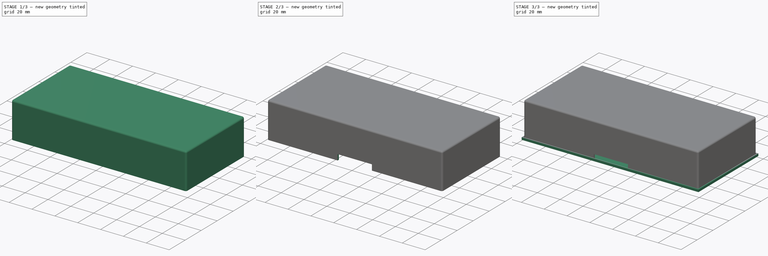
[diagram: build sequence overview — one tinted view per stage of 3, left to right]
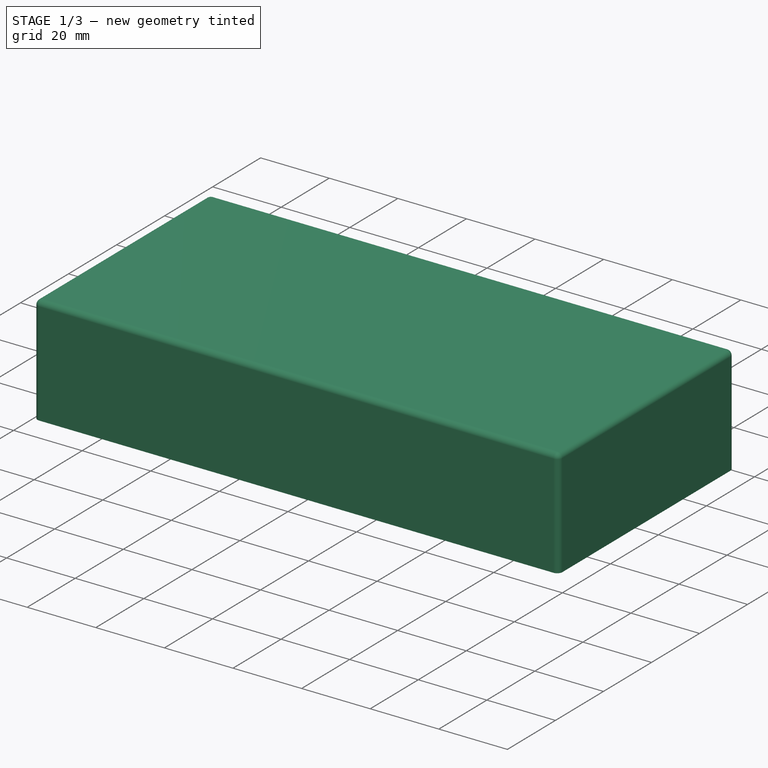
[diagram: stage 1 of 3 — iso view after this stage's code; geometry added in this stage tinted green]
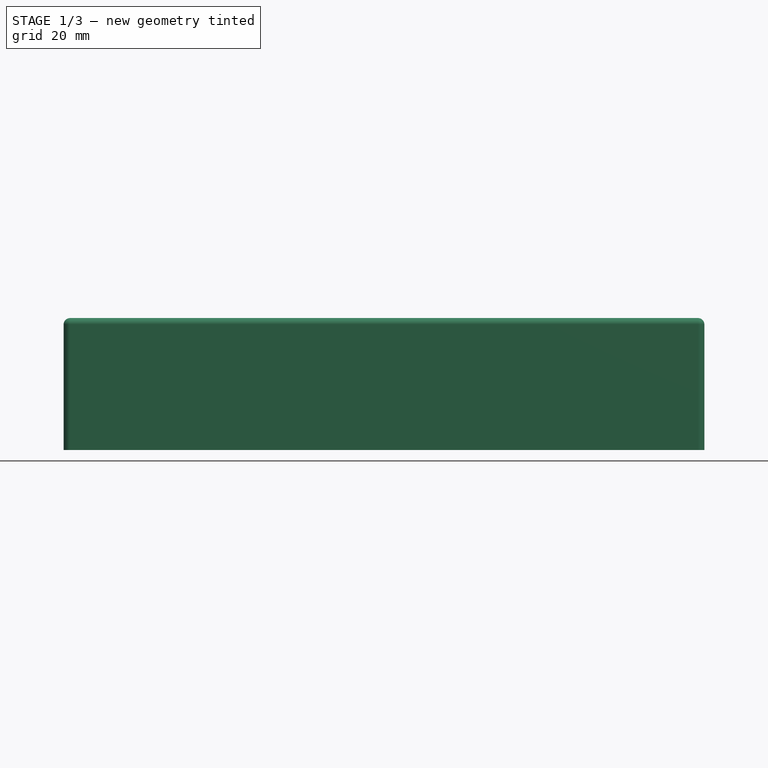
[diagram: stage 1 of 3 — front view after this stage's code; geometry added in this stage tinted green]
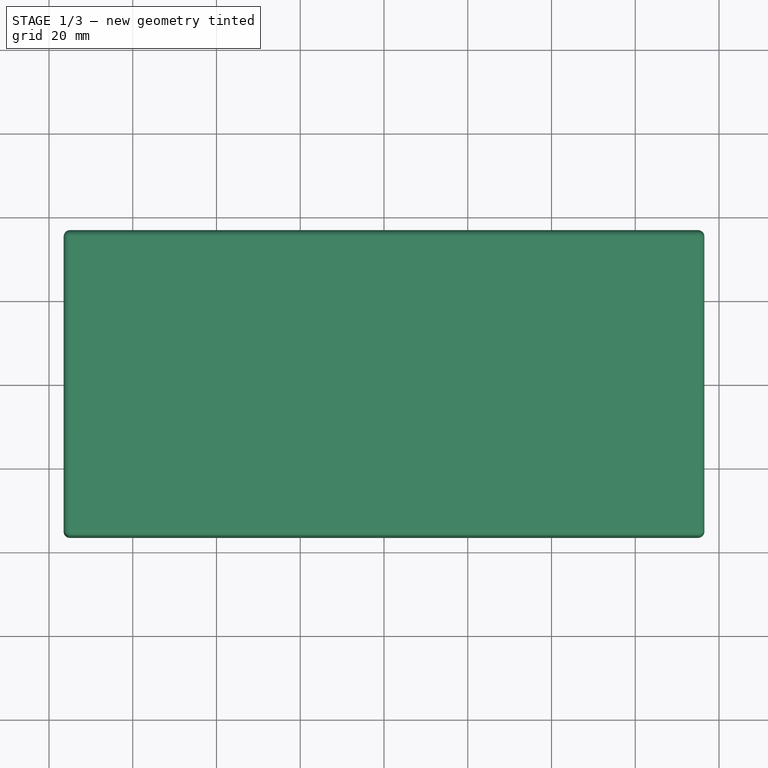
[diagram: stage 1 of 3 — top view after this stage's code; geometry added in this stage tinted green]
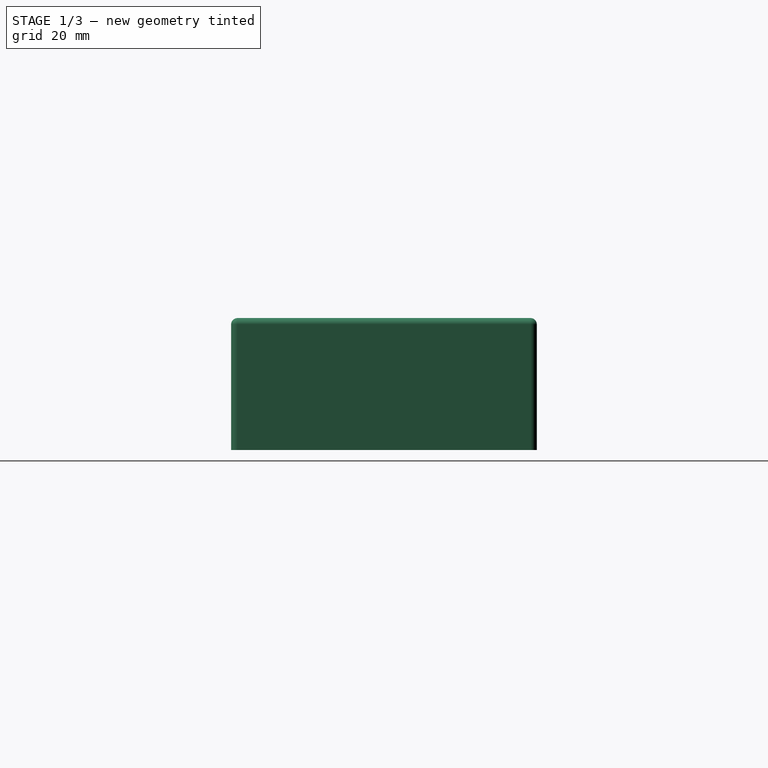
[diagram: stage 1 of 3 — right view after this stage's code; geometry added in this stage tinted green]
FCSTD DOCUMENT  (FreeCAD 0.14R3702 (Git))
Label: case_large
License: All rights reserved
LicenseURL: http://en.wikipedia.org/wiki/All_rights_reserved
objects: Sketcher::SketchObject×4, PartDesign::Pad×2, PartDesign::Pocket×2, Part::Thickness×1
note: 13 computed .brp shape members not serialized (recipe doc carries the construction recipe); baked Part::Feature solids carry a one-line shape summary decoded from their .brp

FEATURE [Sketcher::SketchObject] Sketch  label="cover"
  sketch-geometry (4):
    g0: LineSegment StartX=-75 StartY=35 StartZ=0 EndX=75 EndY=35 EndZ=0
    g1: LineSegment StartX=75 StartY=35 StartZ=0 EndX=75 EndY=-35 EndZ=0
    g2: LineSegment StartX=75 StartY=-35 StartZ=0 EndX=-75 EndY=-35 EndZ=0
    g3: LineSegment StartX=-75 StartY=-35 StartZ=0 EndX=-75 EndY=35 EndZ=0
  constraints (12):
    c: Coincident(g0,g1)
    c: Coincident(g1,g2)
    c: Coincident(g2,g3)
    c: Coincident(g3,g0)
    c: Horizontal(g0)
    c: Horizontal(g2)
    c: Vertical(g1)
    c: Vertical(g3)
    c: Symmetric(g0,g0,g-2)
    c: Symmetric(g0,g2,g-1)
    c: Distance(g3) = 70
    c: Distance(g0) = 150
FEATURE [PartDesign::Pad] Pad  label="fill_cover"
  Length = 30
  Length2 = 100
  Sketch = -> Sketch
  Type = 0
FEATURE [Part::Thickness] Thickness  label="thinkness_cover"
  Faces = -> Pad [Face5]
  Intersection = false
  Join = 0
  Mode = 0
  SelfIntersection = false
  Value = 1.5
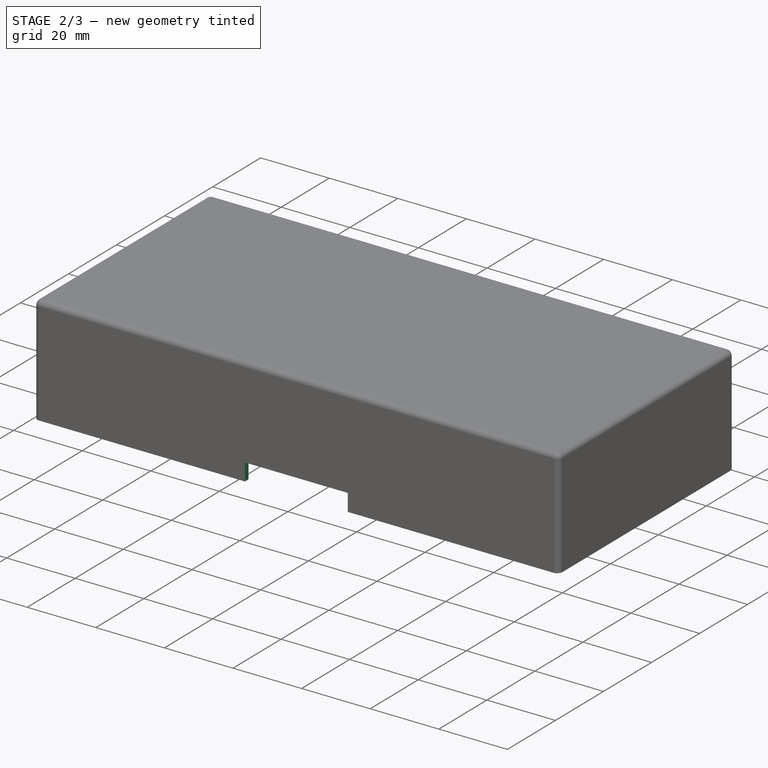
[diagram: stage 2 of 3 — iso view after this stage's code; geometry added in this stage tinted green]
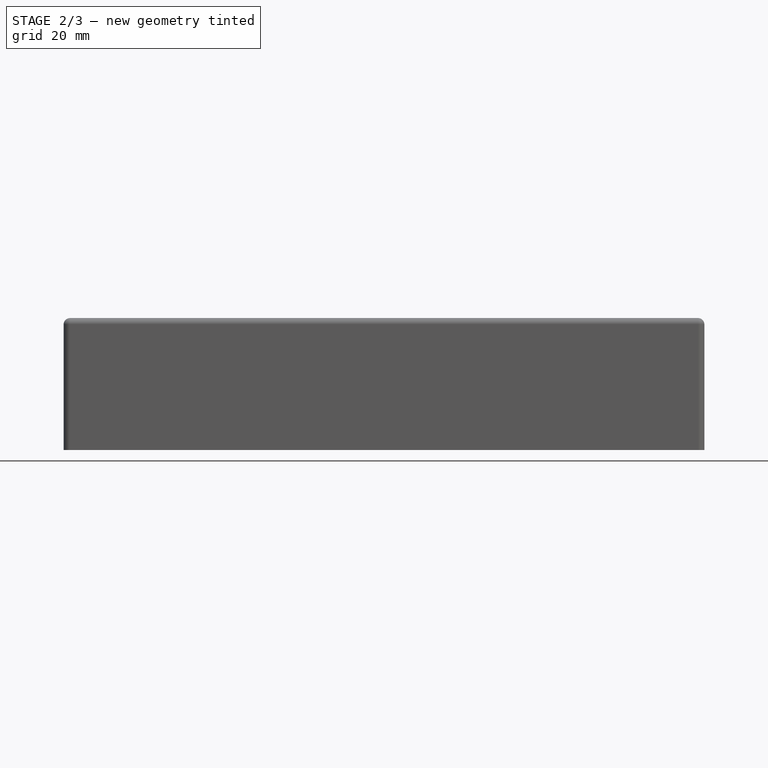
[diagram: stage 2 of 3 — front view after this stage's code; geometry added in this stage tinted green]
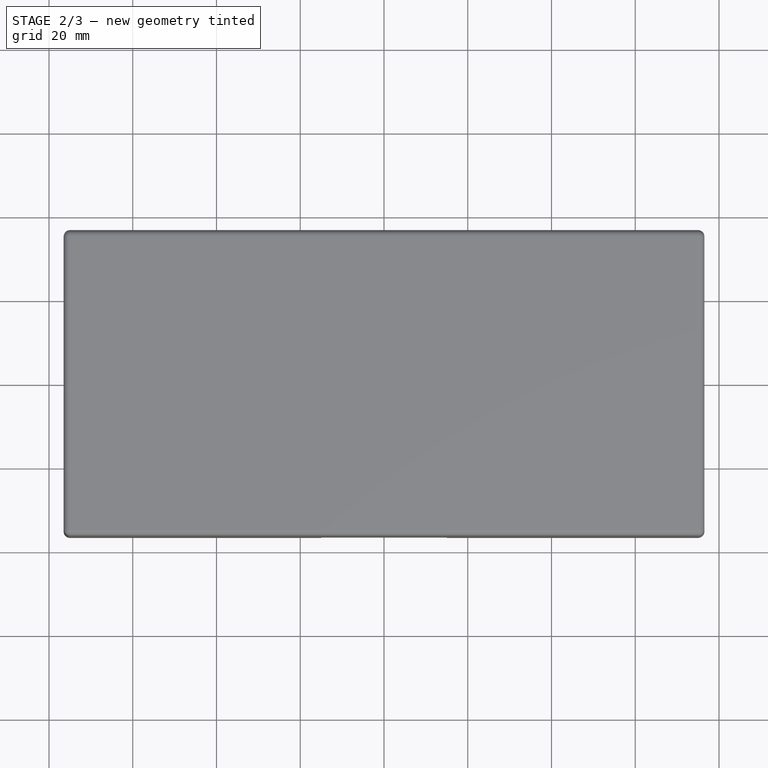
[diagram: stage 2 of 3 — top view after this stage's code; geometry added in this stage tinted green]
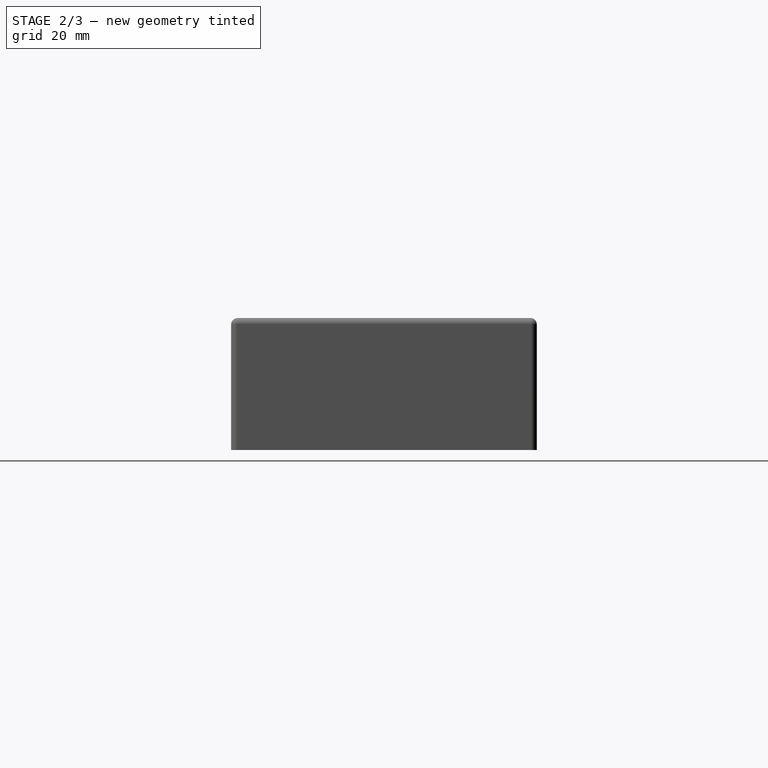
[diagram: stage 2 of 3 — right view after this stage's code; geometry added in this stage tinted green]
FEATURE [Sketcher::SketchObject] Sketch003  label="hole"
  Placement = pos=(0,-36.5,0) rot=(1,0,0;1.5708rad)
  Support = -> Thickness [Face12]
  sketch-geometry (4):
    g0: LineSegment StartX=-15 StartY=5 StartZ=0 EndX=15 EndY=5 EndZ=0
    g1: LineSegment StartX=15 StartY=5 StartZ=0 EndX=15 EndY=0 EndZ=0
    g2: LineSegment StartX=15 StartY=0 StartZ=0 EndX=-15 EndY=0 EndZ=0
    g3: LineSegment StartX=-15 StartY=0 StartZ=0 EndX=-15 EndY=5 EndZ=0
  constraints (12):
    c: Coincident(g0,g1)
    c: Coincident(g1,g2)
    c: Coincident(g2,g3)
    c: Coincident(g3,g0)
    c: Horizontal(g0)
    c: Horizontal(g2)
    c: Vertical(g1)
    c: Vertical(g3)
    c: Symmetric(g0,g0,g-2)
    c: Distance(g3) = 5
    c: Distance(g0) = 30
    c: DistanceY(g-1,g1) = 0
FEATURE [PartDesign::Pocket] Pocket001  label="cover_hole"
  Length = 0
  Sketch = -> Sketch003
  Type = 2
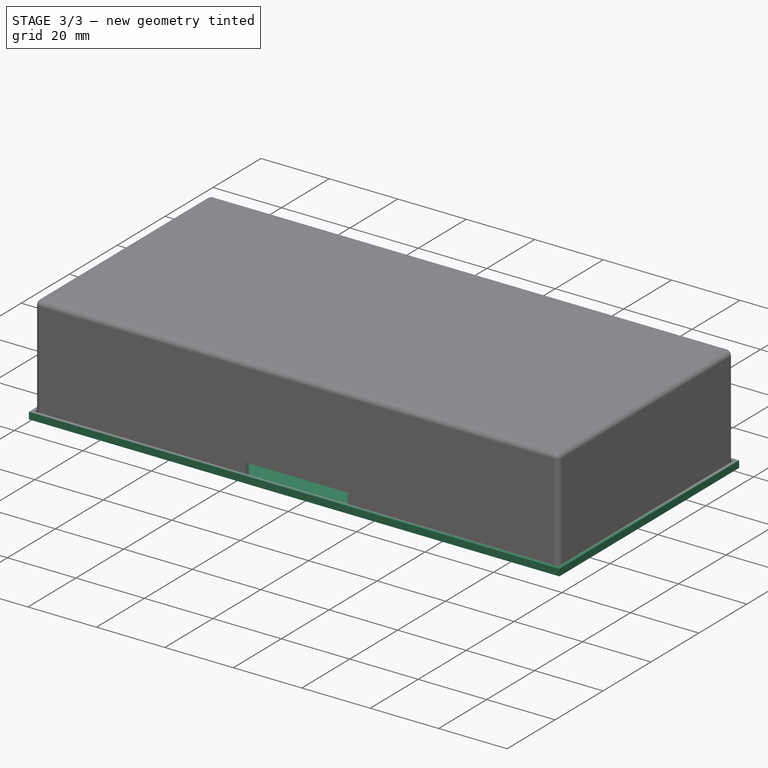
[diagram: stage 3 of 3 — iso view after this stage's code; geometry added in this stage tinted green]
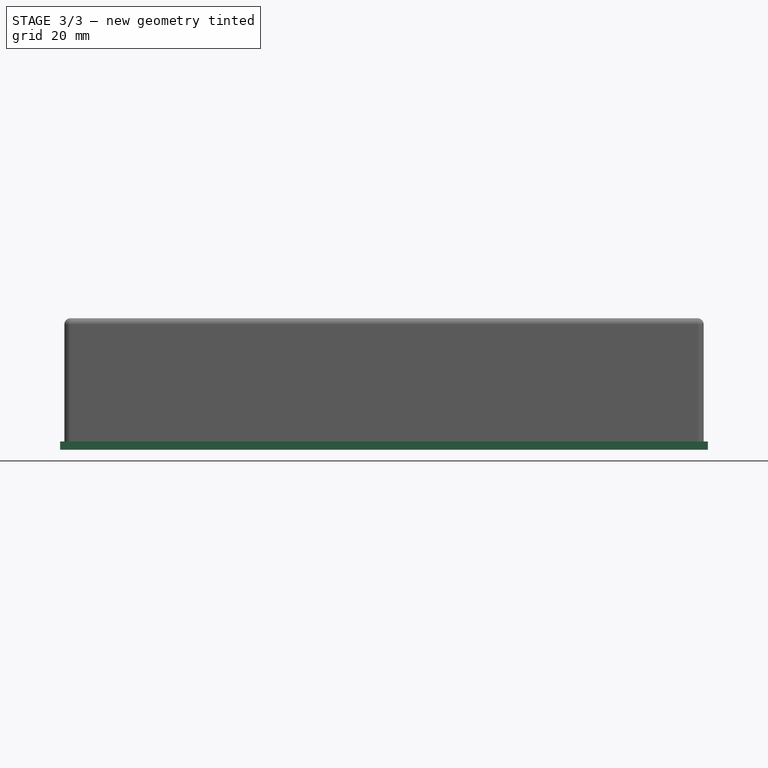
[diagram: stage 3 of 3 — front view after this stage's code; geometry added in this stage tinted green]
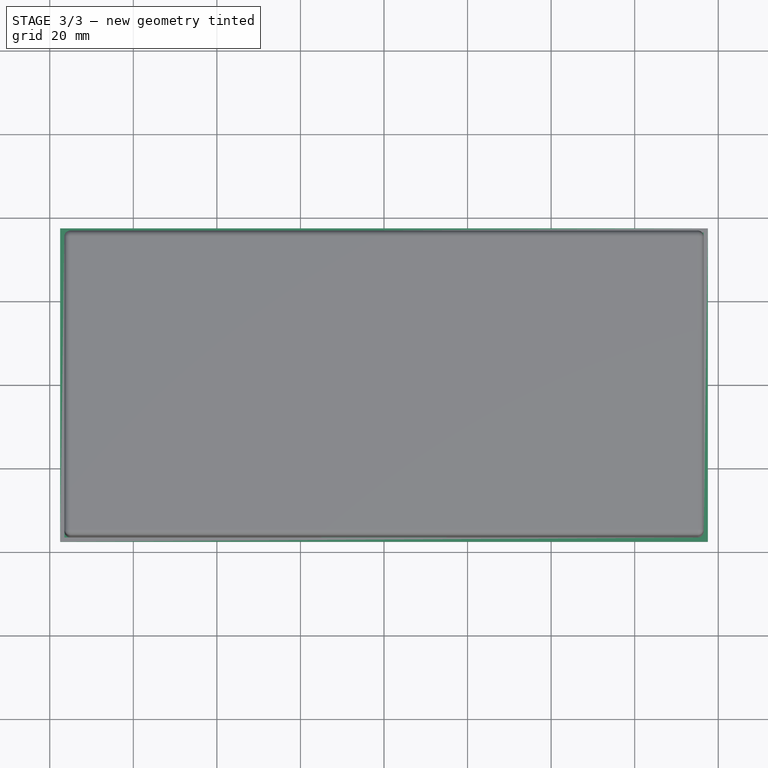
[diagram: stage 3 of 3 — top view after this stage's code; geometry added in this stage tinted green]
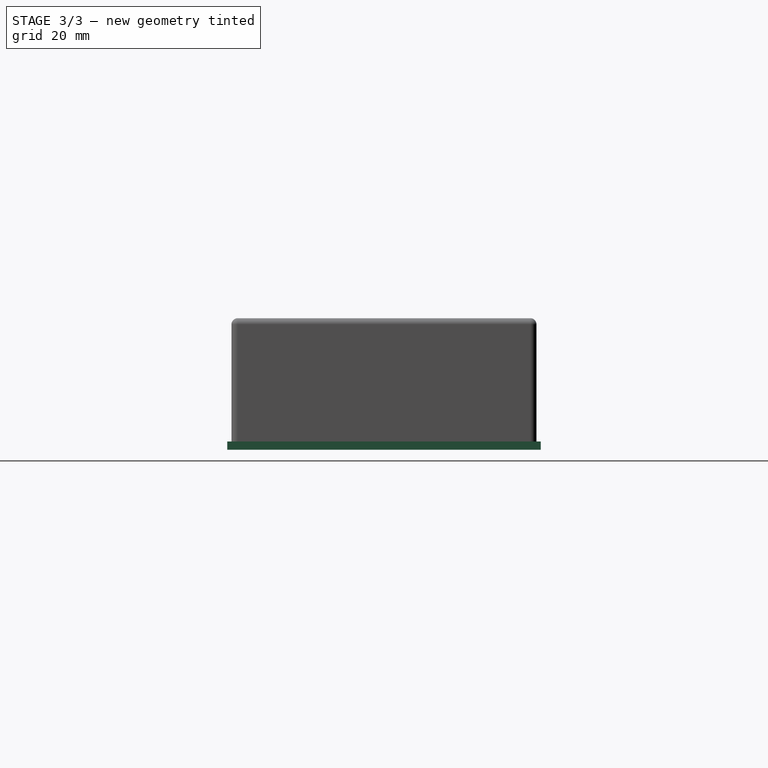
[diagram: stage 3 of 3 — right view after this stage's code; geometry added in this stage tinted green]
FEATURE [Sketcher::SketchObject] Sketch001  label="socle"
  sketch-geometry (4):
    g0: LineSegment StartX=-77.5 StartY=37.5 StartZ=0 EndX=77.5 EndY=37.5 EndZ=0
    g1: LineSegment StartX=77.5 StartY=37.5 StartZ=0 EndX=77.5 EndY=-37.5 EndZ=0
    g2: LineSegment StartX=77.5 StartY=-37.5 StartZ=0 EndX=-77.5 EndY=-37.5 EndZ=0
    g3: LineSegment StartX=-77.5 StartY=-37.5 StartZ=0 EndX=-77.5 EndY=37.5 EndZ=0
  constraints (12):
    c: Coincident(g0,g1)
    c: Coincident(g1,g2)
    c: Coincident(g2,g3)
    c: Coincident(g3,g0)
    c: Horizontal(g0)
    c: Horizontal(g2)
    c: Vertical(g1)
    c: Vertical(g3)
    c: Symmetric(g0,g0,g-2)
    c: Symmetric(g0,g2,g-1)
    c: Distance(g3) = 75
    c: Distance(g0) = 155
FEATURE [PartDesign::Pad] Pad001  label="fill_socle"
  Length = 2
  Length2 = 100
  Sketch = -> Sketch001
  Type = 0
FEATURE [Sketcher::SketchObject] Sketch002  label="pocket"
  Placement = pos=(0,0,2) rot=(0,0,1;0rad)
  Support = -> Pad001 [Face6]
  sketch-geometry (4):
    g0: LineSegment StartX=-76.5 StartY=36.5 StartZ=0 EndX=76.5 EndY=36.5 EndZ=0
    g1: LineSegment StartX=76.5 StartY=36.5 StartZ=0 EndX=76.5 EndY=-36.5 EndZ=0
    g2: LineSegment StartX=76.5 StartY=-36.5 StartZ=0 EndX=-76.5 EndY=-36.5 EndZ=0
    g3: LineSegment StartX=-76.5 StartY=-36.5 StartZ=0 EndX=-76.5 EndY=36.5 EndZ=0
  constraints (12):
    c: Coincident(g0,g1)
    c: Coincident(g1,g2)
    c: Coincident(g2,g3)
    c: Coincident(g3,g0)
    c: Horizontal(g0)
    c: Horizontal(g2)
    c: Vertical(g1)
    c: Vertical(g3)
    c: Symmetric(g0,g0,g-2)
    c: Symmetric(g0,g2,g-1)
    c: Distance(g3) = 73
    c: Distance(g0) = 153
FEATURE [PartDesign::Pocket] Pocket  label="pocket_hole"
  Length = 1
  Sketch = -> Sketch002
  Type = 0
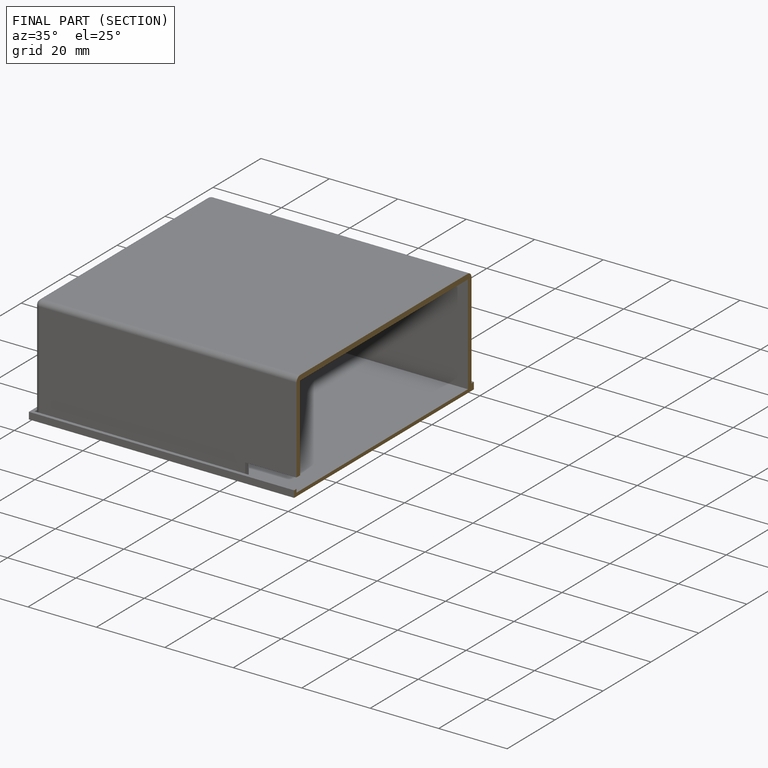
[diagram: finished part — half-section view (interior)]
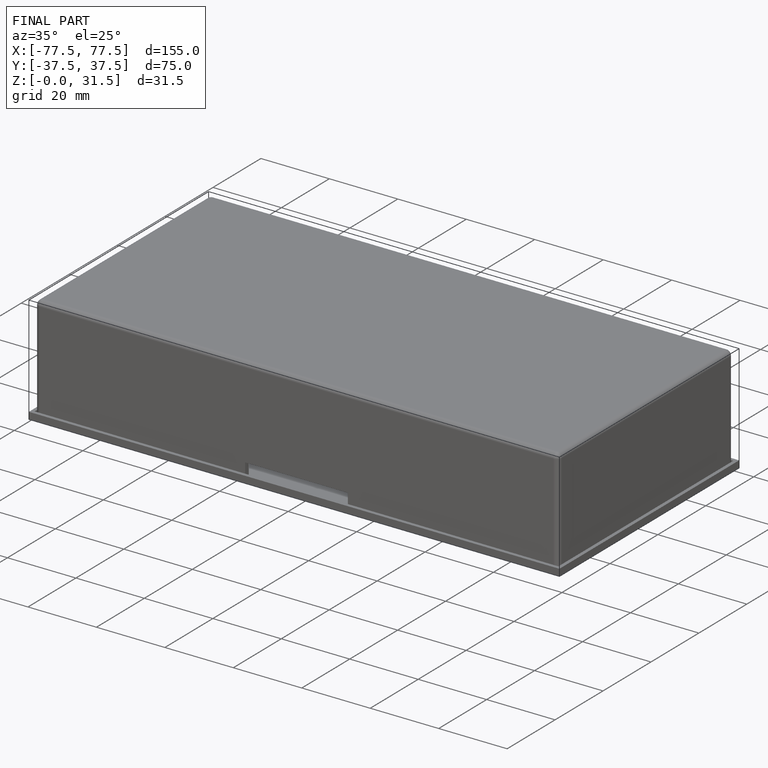
[diagram: finished part — iso view with bounding-box wireframe]
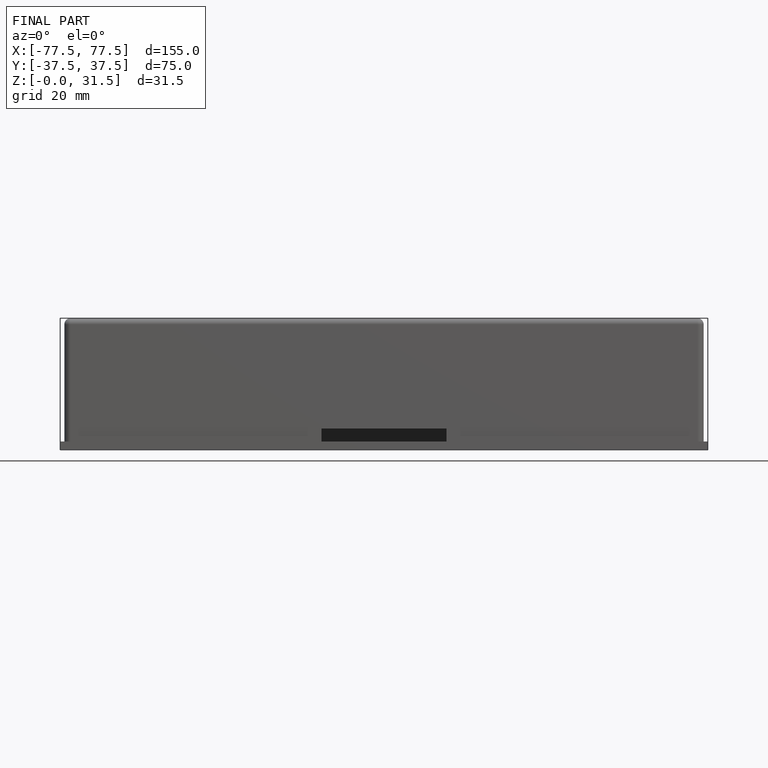
[diagram: finished part — front view with bounding-box wireframe]
